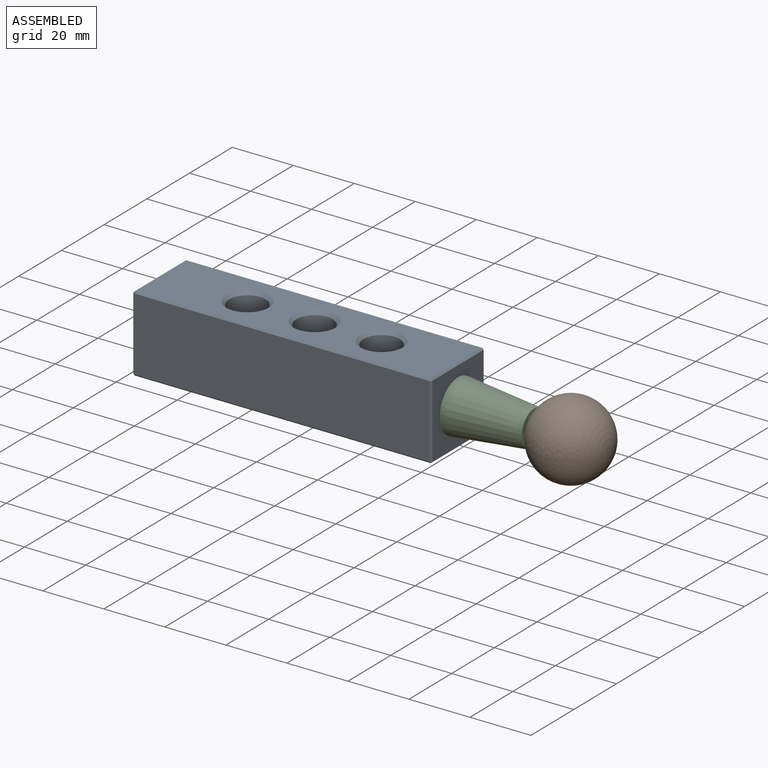
[diagram: assembled view]
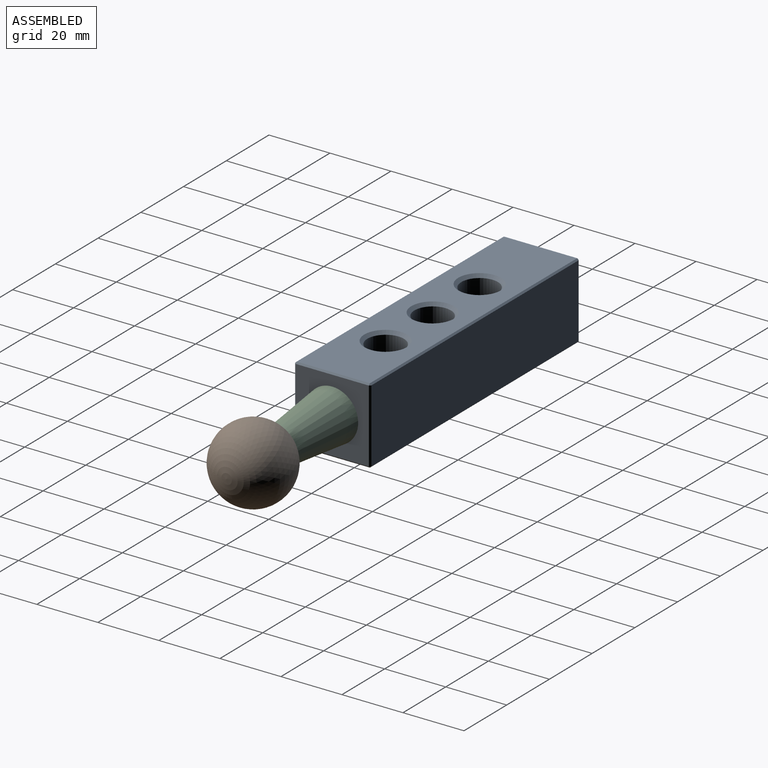
[diagram: assembled view, second angle]
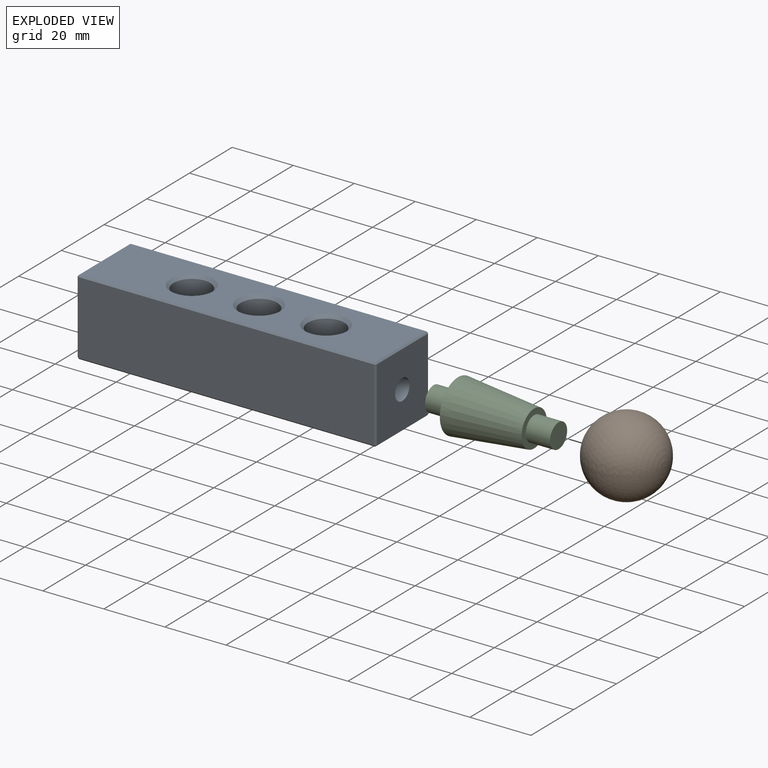
[diagram: exploded view]
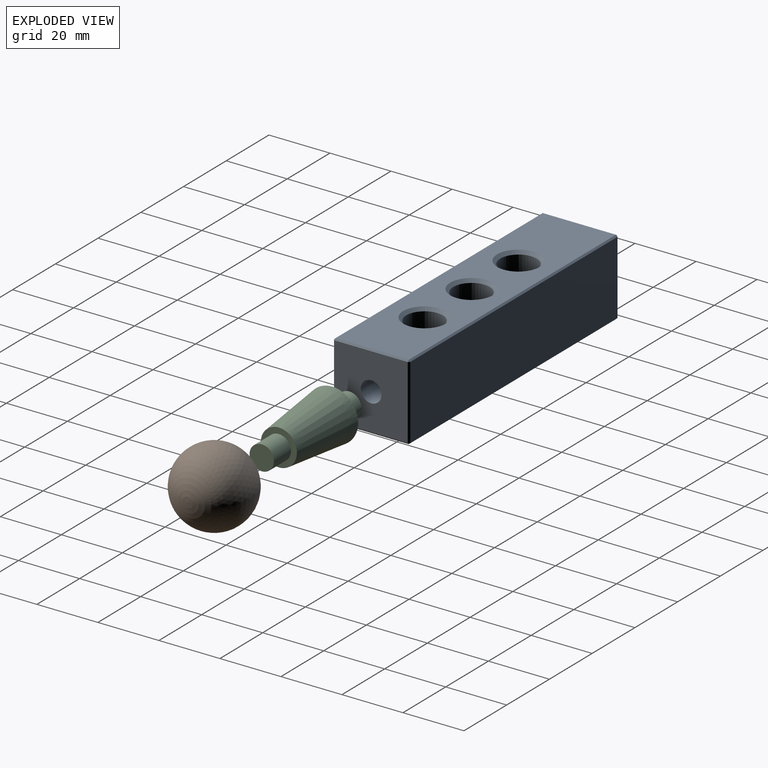
[diagram: exploded view, second angle]
ASSEMBLY  parts=3 mates=2
PART A: 39 faces, bbox 98x25x25 mm
  f0: plane 97x24mm, normal (0,-1,0), area 2328mm2, adj f13,f16,f20,f21
  f1: plane 24x24mm, normal (1,0,0), area 539.7mm2, adj f9,f16,f17,f26,f27
  f2: plane 97x24mm, normal (0,1,0), area 2328mm2, adj f18,f27,f28,f32
  f3: cylinder r=6mm len=23mm, axis (0,0,-1), area 867.1mm2, adj f33,f37
  f4: cylinder r=6mm len=23mm, axis (0,0,-1), area 867.1mm2, adj f34,f38
  f5: cylinder r=6mm len=23mm, axis (0,0,-1), area 867.1mm2, adj f35,f36
  f6: plane 24x24mm, normal (-1,0,0), area 374.9mm2, adj f11,f19,f20,f28,f29
  f7: plane 97x24mm, normal (0,0,1), area 1866.2mm2, adj f13,f17,f18,f19,f33,f34,f35
  f8: plane 97x24mm, normal (0,0,-1), area 1866.2mm2, adj f21,f26,f29,f32,f36,f37,f38
  f9: cylinder r=3.4mm len=14mm, axis (-1,0,0), area 299.1mm2, adj f1,f10
  f10: plane 6.8x6.8mm, normal (1,0,0), area 36.3mm2, adj f9
  f11: cylinder r=8mm len=16mm, axis (1,0,0), area 703.7mm2, adj f6,f12
  f12: plane 16x16mm, normal (-1,0,0), area 201.1mm2, adj f11
  f13: plane 97x0.5mm, normal (0,-0.71,0.71), area 68.6mm2, adj f0,f7,f14,f15
  f14: plane 0.5x0.5mm, normal (0.58,-0.58,0.58), area 0.2mm2, adj f13,f16,f17
  f15: plane 0.5x0.5mm, normal (-0.58,-0.58,0.58), area 0.2mm2, adj f13,f19,f20
  f16: plane 24x0.5mm, normal (0.71,-0.71,0), area 17mm2, adj f0,f1,f14,f22
  f17: plane 24x0.5mm, normal (0.71,0,0.71), area 17mm2, adj f1,f7,f14,f23
  f18: plane 97x0.5mm, normal (0,0.71,0.71), area 68.6mm2, adj f2,f7,f23,f24
  f19: plane 24x0.5mm, normal (-0.71,0,0.71), area 17mm2, adj f6,f7,f15,f24
  f20: plane 24x0.5mm, normal (-0.71,-0.71,0), area 17mm2, adj f0,f6,f15,f25
  f21: plane 97x0.5mm, normal (0,-0.71,-0.71), area 68.6mm2, adj f0,f8,f22,f25
  f22: plane 0.5x0.5mm, normal (0.58,-0.58,-0.58), area 0.2mm2, adj f16,f21,f26
  f23: plane 0.5x0.5mm, normal (0.58,0.58,0.58), area 0.2mm2, adj f17,f18,f27
  f24: plane 0.5x0.5mm, normal (-0.58,0.58,0.58), area 0.2mm2, adj f18,f19,f28
  f25: plane 0.5x0.5mm, normal (-0.58,-0.58,-0.58), area 0.2mm2, adj f20,f21,f29
  f26: plane 24x0.5mm, normal (0.71,0,-0.71), area 17mm2, adj f1,f8,f22,f30
  f27: plane 24x0.5mm, normal (0.71,0.71,0), area 17mm2, adj f1,f2,f23,f30
  f28: plane 24x0.5mm, normal (-0.71,0.71,0), area 17mm2, adj f2,f6,f24,f31
  f29: plane 24x0.5mm, normal (-0.71,0,-0.71), area 17mm2, adj f6,f8,f25,f31
  f30: plane 0.5x0.5mm, normal (0.58,0.58,-0.58), area 0.2mm2, adj f26,f27,f32
  f31: plane 0.5x0.5mm, normal (-0.58,0.58,-0.58), area 0.2mm2, adj f28,f29,f32
  f32: plane 97x0.5mm, normal (0,0.71,-0.71), area 68.6mm2, adj f2,f8,f30,f31
  f33: cone r=6mm half-angle=45deg, axis (0,0,1), area 57.8mm2, adj f3,f7
  f34: cone r=6mm half-angle=45deg, axis (0,0,1), area 57.8mm2, adj f4,f7
  f35: cone r=6mm half-angle=45deg, axis (0,0,1), area 57.8mm2, adj f5,f7
  f36: cone r=7mm half-angle=45deg, axis (0,0,-1), area 57.8mm2, adj f5,f8
  f37: cone r=7mm half-angle=45deg, axis (0,0,-1), area 57.8mm2, adj f3,f8
  f38: cone r=7mm half-angle=45deg, axis (0,0,-1), area 57.8mm2, adj f4,f8
PART B: 3 faces, bbox 25x24.5x25 mm
  f0: plane 6.8x6.8mm, normal (0,-1,0), area 36.3mm2, adj f1
  f1: cylinder r=3.4mm len=7.53mm, axis (0,-1,0), area 160.8mm2, adj f0,f2
  f2: sphere r=12.5mm, area 1926.5mm2, adj f1
PART C: 7 faces, bbox 17x41x17 mm
  f0: plane 11.83x11.83mm, normal (0,-1,0), area 59.6mm2, adj f1,f6
  f1: cylinder r=4mm len=8mm, axis (0,-1,0), area 201.1mm2, adj f0,f2
  f2: plane 8x8mm, normal (0,-1,0), area 50.3mm2, adj f1
  f3: plane 8x8mm, normal (0,1,0), area 50.3mm2, adj f4
  f4: cylinder r=4mm len=8mm, axis (0,-1,0), area 201.1mm2, adj f3,f5
  f5: plane 17x17mm, normal (0,1,0), area 176.7mm2, adj f4,f6
  f6: cone r=8.5mm half-angle=5.9deg, axis (0,1,0), area 1138mm2, adj f0,f5
PLACE A t=(-26.94,-5.76,2.19)mm
PLACE B rot(axis=(-0.58,-0.58,-0.58),120deg) t=(59.09,-5.76,14.69)mm
PLACE C rot(axis=(0.71,-0.71,0),180deg) t=(55.06,-5.76,14.69)mm
MATE fastened C.f1 <-> A.f9  axis (-1,0,0) through (22.06,-5.76,14.69)mm
MATE fastened B.f1 <-> C.f1  axis (-1,0,0) through (47.06,-5.76,14.69)mm
